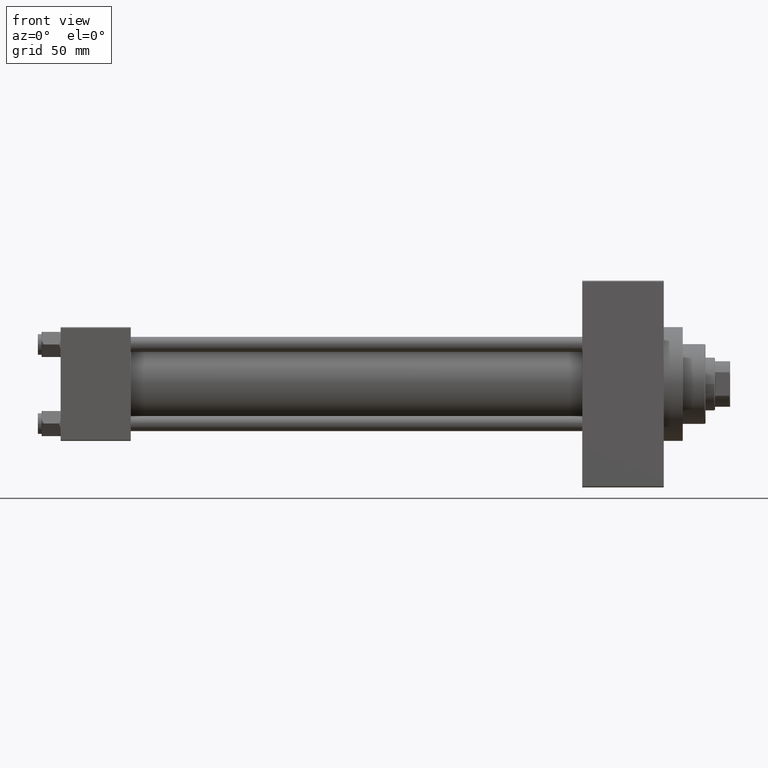
[diagram: clean part render]
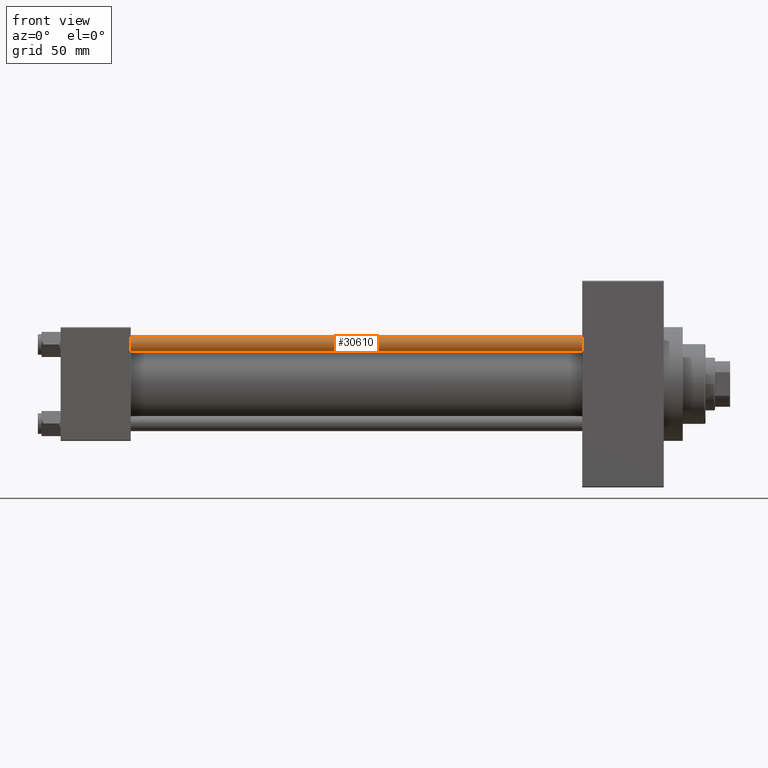
[diagram: same view with one face highlighted and labeled with its STEP entity id]
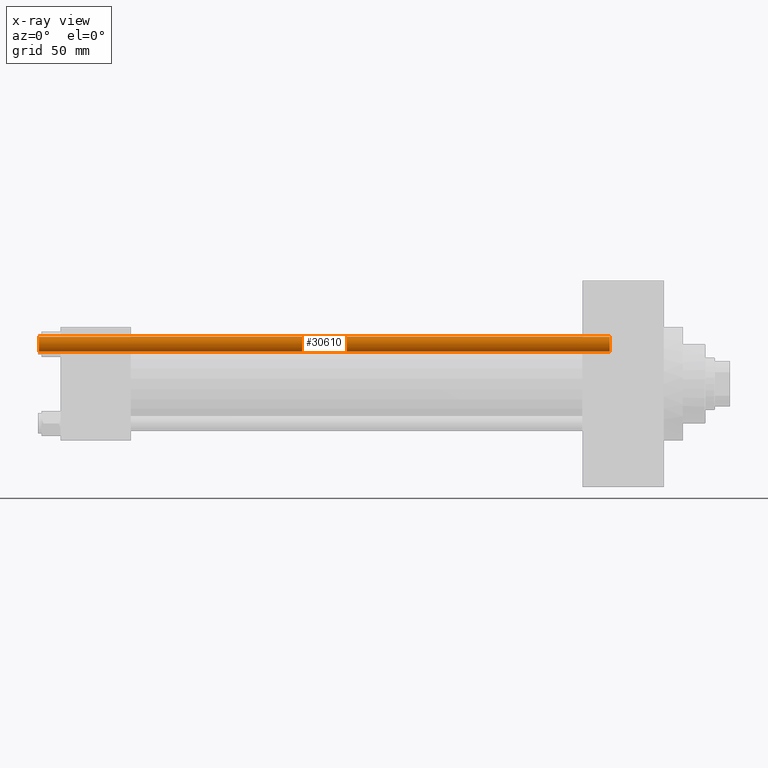
[diagram: x-ray of the same camera — body ghosted, the highlighted face saturated]
A machine part, front view. The second image highlights one B-rep face of the part: STEP entity #30610.
The next image is the same camera in x-ray: the body ghosted, the highlighted face saturated — about 0% of this face is hidden behind the body in this view.
In plain terms, the highlighted cylindrical surface (edge-blend (fillet) strip) has radius 4 mm, axis along (1, 0, 0).
Its self-contained STEP definition (entity closure, byte-faithful):
#1273 = CIRCLE ( 'NONE', #19674, 4.000000000000000000 ) ;
#4581 = ORIENTED_EDGE ( 'NONE', *, *, #41530, .T. ) ;
#5726 = DIRECTION ( 'NONE',  ( -0.000000000000000000, -0.000000000000000000, -1.000000000000000000 ) ) ;
#6467 = DIRECTION ( 'NONE',  ( 0.000000000000000000, 0.000000000000000000, -1.000000000000000000 ) ) ;
#6748 = DIRECTION ( 'NONE',  ( -0.000000000000000000, -0.000000000000000000, -1.000000000000000000 ) ) ;
#7374 = CARTESIAN_POINT ( 'NONE',  ( -4.000000000000000000, 0.000000000000000000, 301.4999999999999432 ) ) ;
#7476 = AXIS2_PLACEMENT_3D ( 'NONE', #17276, #6467, #10785 ) ;
#8388 = VECTOR ( 'NONE', #40869, 1000.000000000000000 ) ;
#10785 = DIRECTION ( 'NONE',  ( 1.000000000000000000, 0.000000000000000000, 0.000000000000000000 ) ) ;
#10844 = CARTESIAN_POINT ( 'NONE',  ( 4.000000000000000000, 4.898587196589412829E-16, 302.0000000000000000 ) ) ;
#12935 = CARTESIAN_POINT ( 'NONE',  ( -4.000000000000000000, 0.000000000000000000, 302.0000000000000000 ) ) ;
#13613 = CIRCLE ( 'NONE', #7476, 4.000000000000000000 ) ;
#14039 = EDGE_CURVE ( 'NONE', #35428, #35659, #1273, .T. ) ;
#14726 = AXIS2_PLACEMENT_3D ( 'NONE', #24787, #6748, #32710 ) ;
#16395 = CARTESIAN_POINT ( 'NONE',  ( 4.000000000000000000, 4.898587196589412829E-16, 301.4999999999999432 ) ) ;
#17276 = CARTESIAN_POINT ( 'NONE',  ( 0.000000000000000000, 0.000000000000000000, 301.4999999999999432 ) ) ;
#19674 = AXIS2_PLACEMENT_3D ( 'NONE', #41690, #23426, #34959 ) ;
#22221 = ORIENTED_EDGE ( 'NONE', *, *, #25039, .T. ) ;
#23426 = DIRECTION ( 'NONE',  ( -0.000000000000000000, -0.000000000000000000, 1.000000000000000000 ) ) ;
#23998 = LINE ( 'NONE', #12935, #26541 ) ;
#24301 = EDGE_LOOP ( 'NONE', ( #4581, #22221, #24857, #30912 ) ) ;
#24787 = CARTESIAN_POINT ( 'NONE',  ( 0.000000000000000000, 0.000000000000000000, 302.0000000000000000 ) ) ;
#24857 = ORIENTED_EDGE ( 'NONE', *, *, #14039, .T. ) ;
#25039 = EDGE_CURVE ( 'NONE', #44217, #35428, #28878, .T. ) ;
#26541 = VECTOR ( 'NONE', #5726, 1000.000000000000000 ) ;
#28878 = LINE ( 'NONE', #10844, #8388 ) ;
#29119 = FACE_OUTER_BOUND ( 'NONE', #24301, .T. ) ;
#30610 = ADVANCED_FACE ( 'NONE', ( #29119 ), #46662, .T. ) ;
#30912 = ORIENTED_EDGE ( 'NONE', *, *, #38513, .F. ) ;
#32710 = DIRECTION ( 'NONE',  ( -1.000000000000000000, 0.000000000000000000, 0.000000000000000000 ) ) ;
#33504 = VERTEX_POINT ( 'NONE', #7374 ) ;
#34959 = DIRECTION ( 'NONE',  ( 1.000000000000000000, 0.000000000000000000, 0.000000000000000000 ) ) ;
#35428 = VERTEX_POINT ( 'NONE', #36119 ) ;
#35659 = VERTEX_POINT ( 'NONE', #42082 ) ;
#36119 = CARTESIAN_POINT ( 'NONE',  ( 4.000000000000000000, 4.898587196589412829E-16, 0.5000000000000559552 ) ) ;
#38513 = EDGE_CURVE ( 'NONE', #33504, #35659, #23998, .T. ) ;
#40869 = DIRECTION ( 'NONE',  ( -0.000000000000000000, -0.000000000000000000, -1.000000000000000000 ) ) ;
#41530 = EDGE_CURVE ( 'NONE', #33504, #44217, #13613, .T. ) ;
#41690 = CARTESIAN_POINT ( 'NONE',  ( 0.000000000000000000, 0.000000000000000000, 0.5000000000000559552 ) ) ;
#42082 = CARTESIAN_POINT ( 'NONE',  ( -4.000000000000000000, 0.000000000000000000, 0.5000000000000559552 ) ) ;
#44217 = VERTEX_POINT ( 'NONE', #16395 ) ;
#46662 = CYLINDRICAL_SURFACE ( 'NONE', #14726, 4.000000000000000000 ) ;